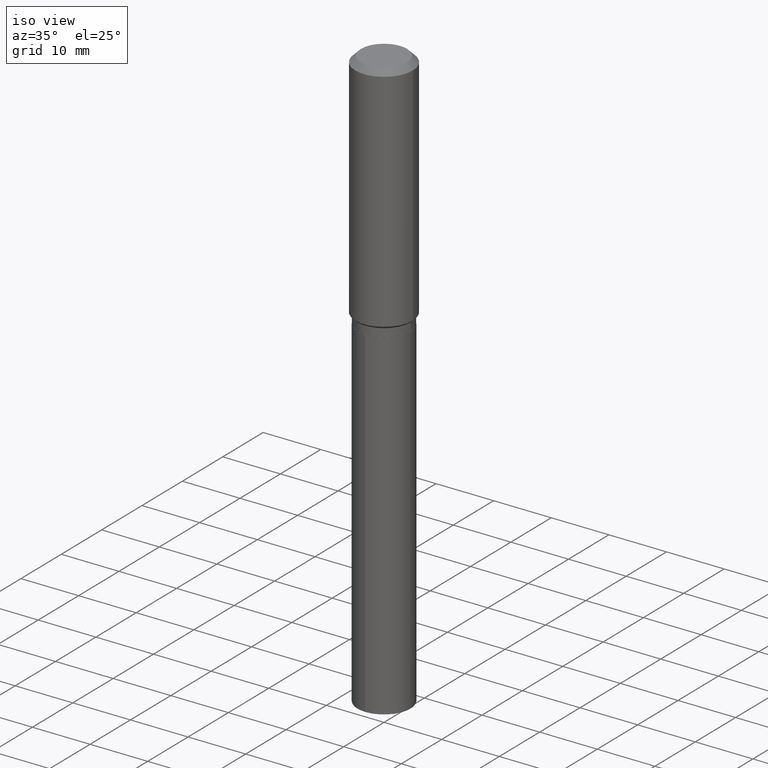
[diagram: clean part render]
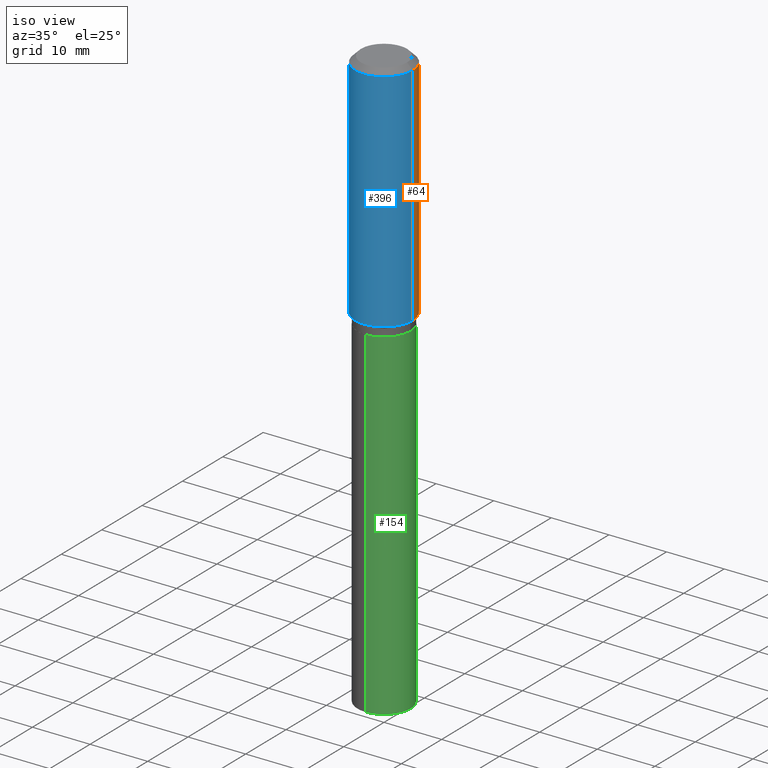
[diagram: same view with three faces highlighted in distinct colors, each labeled with its STEP entity id]
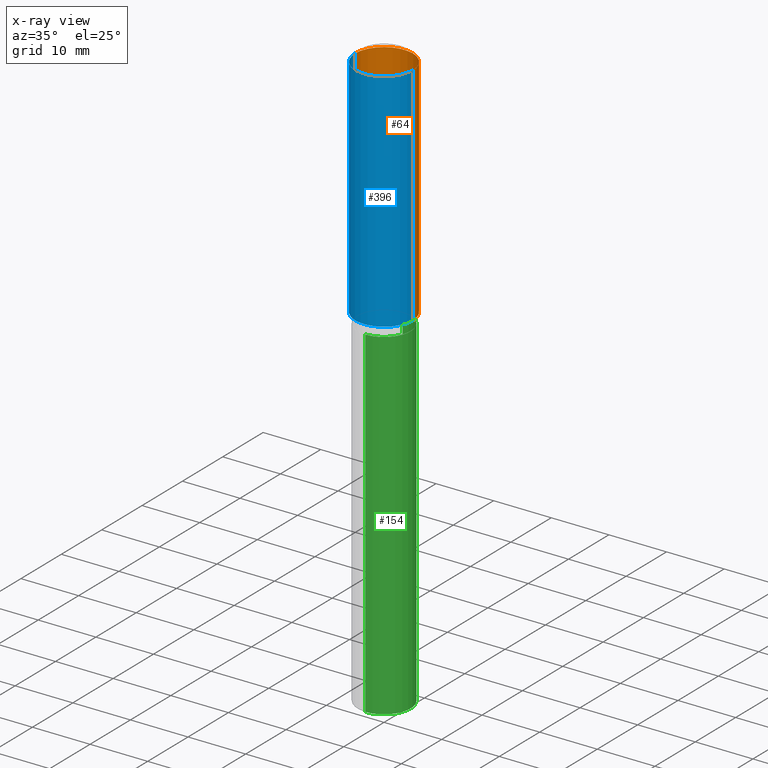
[diagram: x-ray of the same camera — body ghosted, the three highlighted faces saturated]
A machine part, iso view with three faces highlighted in distinct colors.
The next image is the same camera in x-ray (body ghosted, the three faces saturated) — at least one of them is partly hidden behind the body in this view.
Their STEP definitions:

[orange] entity #64 — the highlighted cylindrical surface (edge-blend (fillet) strip) has radius 5 mm, axis along (-0, 0, 1).
#12 = FACE_OUTER_BOUND ( 'NONE', #374, .T. ) ;
#19 = CARTESIAN_POINT ( 'NONE',  ( 0.1968500000000002192, -6.901436588424297877E-15, -1.582949999999999191 ) ) ;
#24 = AXIS2_PLACEMENT_3D ( 'NONE', #82, #167, #342 ) ;
#27 = ORIENTED_EDGE ( 'NONE', *, *, #245, .T. ) ;
#46 = VECTOR ( 'NONE', #203, 39.37007874015748143 ) ;
#62 = ORIENTED_EDGE ( 'NONE', *, *, #274, .T. ) ;
#64 = ADVANCED_FACE ( 'NONE', ( #12 ), #306, .T. ) ;
#80 = LINE ( 'NONE', #121, #97 ) ;
#82 = CARTESIAN_POINT ( 'NONE',  ( 0.000000000000000000, 0.000000000000000000, 0.000000000000000000 ) ) ;
#86 = EDGE_CURVE ( 'NONE', #269, #213, #361, .T. ) ;
#89 = CARTESIAN_POINT ( 'NONE',  ( 0.1968500000000000250, -1.512055823412797189E-15, -0.03937000000000029365 ) ) ;
#97 = VECTOR ( 'NONE', #418, 39.37007874015748143 ) ;
#99 = EDGE_CURVE ( 'NONE', #334, #269, #80, .T. ) ;
#104 = CARTESIAN_POINT ( 'NONE',  ( 3.871054846750760190E-29, -5.526840385321755480E-15, -1.582949999999999191 ) ) ;
#109 = DIRECTION ( 'NONE',  ( 1.000000000000000000, -6.982962677686265922E-15, 0.000000000000000000 ) ) ;
#121 = CARTESIAN_POINT ( 'NONE',  ( 0.1968500000000001082, -1.374596203102542397E-15, 9.598753983154305062E-30 ) ) ;
#147 = AXIS2_PLACEMENT_3D ( 'NONE', #241, #161, #313 ) ;
#161 = DIRECTION ( 'NONE',  ( -2.445468806185136597E-29, 3.491481338843145583E-15, 1.000000000000000000 ) ) ;
#165 = AXIS2_PLACEMENT_3D ( 'NONE', #104, #406, #109 ) ;
#167 = DIRECTION ( 'NONE',  ( -2.445468806185136597E-29, 3.491481338843145583E-15, 1.000000000000000000 ) ) ;
#203 = DIRECTION ( 'NONE',  ( -2.445468806185136877E-29, 3.491481338843145188E-15, 1.000000000000000000 ) ) ;
#207 = ORIENTED_EDGE ( 'NONE', *, *, #86, .F. ) ;
#213 = VERTEX_POINT ( 'NONE', #217 ) ;
#217 = CARTESIAN_POINT ( 'NONE',  ( -0.1968500000000000250, -1.433446627472247151E-15, -0.03937000000000029365 ) ) ;
#241 = CARTESIAN_POINT ( 'NONE',  ( 9.627810689950954155E-31, -1.374596203102556547E-16, -0.03937000000000029365 ) ) ;
#245 = EDGE_CURVE ( 'NONE', #334, #411, #472, .T. ) ;
#246 = CARTESIAN_POINT ( 'NONE',  ( -0.1968500000000001082, 1.398703375343757985E-15, -9.682923725166787881E-30 ) ) ;
#269 = VERTEX_POINT ( 'NONE', #89 ) ;
#272 = CARTESIAN_POINT ( 'NONE',  ( -0.1968500000000002192, -4.128137009977996903E-15, -1.582949999999999191 ) ) ;
#274 = EDGE_CURVE ( 'NONE', #411, #213, #320, .T. ) ;
#306 = CYLINDRICAL_SURFACE ( 'NONE', #24, 0.1968500000000001082 ) ;
#313 = DIRECTION ( 'NONE',  ( 1.000000000000000000, -6.982962677686265922E-15, 0.000000000000000000 ) ) ;
#320 = LINE ( 'NONE', #246, #46 ) ;
#334 = VERTEX_POINT ( 'NONE', #19 ) ;
#342 = DIRECTION ( 'NONE',  ( 1.000000000000000000, -6.982962677686266711E-15, 4.876176775795935793E-29 ) ) ;
#361 = CIRCLE ( 'NONE', #147, 0.1968500000000000250 ) ;
#374 = EDGE_LOOP ( 'NONE', ( #27, #62, #207, #474 ) ) ;
#406 = DIRECTION ( 'NONE',  ( -2.445468806185136597E-29, 3.491481338843145583E-15, 1.000000000000000000 ) ) ;
#411 = VERTEX_POINT ( 'NONE', #272 ) ;
#418 = DIRECTION ( 'NONE',  ( -2.445468806185136877E-29, 3.491481338843145188E-15, 1.000000000000000000 ) ) ;
#472 = CIRCLE ( 'NONE', #165, 0.1968500000000002192 ) ;
#474 = ORIENTED_EDGE ( 'NONE', *, *, #99, .F. ) ;

[blue] entity #396 — the highlighted cylindrical surface (edge-blend (fillet) strip) has radius 5 mm, axis along (-0, 0, 1).
#19 = CARTESIAN_POINT ( 'NONE',  ( 0.1968500000000002192, -6.901436588424297877E-15, -1.582949999999999191 ) ) ;
#41 = CYLINDRICAL_SURFACE ( 'NONE', #416, 0.1968500000000001082 ) ;
#46 = VECTOR ( 'NONE', #203, 39.37007874015748143 ) ;
#68 = AXIS2_PLACEMENT_3D ( 'NONE', #153, #448, #452 ) ;
#79 = DIRECTION ( 'NONE',  ( 1.000000000000000000, -6.982962677686266711E-15, 4.876176775795935793E-29 ) ) ;
#80 = LINE ( 'NONE', #121, #97 ) ;
#88 = FACE_OUTER_BOUND ( 'NONE', #337, .T. ) ;
#89 = CARTESIAN_POINT ( 'NONE',  ( 0.1968500000000000250, -1.512055823412797189E-15, -0.03937000000000029365 ) ) ;
#97 = VECTOR ( 'NONE', #418, 39.37007874015748143 ) ;
#99 = EDGE_CURVE ( 'NONE', #334, #269, #80, .T. ) ;
#110 = ORIENTED_EDGE ( 'NONE', *, *, #274, .F. ) ;
#121 = CARTESIAN_POINT ( 'NONE',  ( 0.1968500000000001082, -1.374596203102542397E-15, 9.598753983154305062E-30 ) ) ;
#133 = AXIS2_PLACEMENT_3D ( 'NONE', #365, #328, #412 ) ;
#153 = CARTESIAN_POINT ( 'NONE',  ( 3.871054846750760190E-29, -5.526840385321755480E-15, -1.582949999999999191 ) ) ;
#203 = DIRECTION ( 'NONE',  ( -2.445468806185136877E-29, 3.491481338843145188E-15, 1.000000000000000000 ) ) ;
#213 = VERTEX_POINT ( 'NONE', #217 ) ;
#214 = EDGE_CURVE ( 'NONE', #213, #269, #290, .T. ) ;
#217 = CARTESIAN_POINT ( 'NONE',  ( -0.1968500000000000250, -1.433446627472247151E-15, -0.03937000000000029365 ) ) ;
#246 = CARTESIAN_POINT ( 'NONE',  ( -0.1968500000000001082, 1.398703375343757985E-15, -9.682923725166787881E-30 ) ) ;
#269 = VERTEX_POINT ( 'NONE', #89 ) ;
#272 = CARTESIAN_POINT ( 'NONE',  ( -0.1968500000000002192, -4.128137009977996903E-15, -1.582949999999999191 ) ) ;
#274 = EDGE_CURVE ( 'NONE', #411, #213, #320, .T. ) ;
#290 = CIRCLE ( 'NONE', #133, 0.1968500000000000250 ) ;
#296 = ORIENTED_EDGE ( 'NONE', *, *, #401, .T. ) ;
#303 = DIRECTION ( 'NONE',  ( -2.445468806185136597E-29, 3.491481338843145583E-15, 1.000000000000000000 ) ) ;
#317 = CIRCLE ( 'NONE', #68, 0.1968500000000002192 ) ;
#320 = LINE ( 'NONE', #246, #46 ) ;
#328 = DIRECTION ( 'NONE',  ( -2.445468806185136597E-29, 3.491481338843145583E-15, 1.000000000000000000 ) ) ;
#334 = VERTEX_POINT ( 'NONE', #19 ) ;
#337 = EDGE_LOOP ( 'NONE', ( #110, #296, #440, #468 ) ) ;
#365 = CARTESIAN_POINT ( 'NONE',  ( 9.627810689950954155E-31, -1.374596203102556547E-16, -0.03937000000000029365 ) ) ;
#396 = ADVANCED_FACE ( 'NONE', ( #88 ), #41, .T. ) ;
#401 = EDGE_CURVE ( 'NONE', #411, #334, #317, .T. ) ;
#408 = CARTESIAN_POINT ( 'NONE',  ( 0.000000000000000000, 0.000000000000000000, 0.000000000000000000 ) ) ;
#411 = VERTEX_POINT ( 'NONE', #272 ) ;
#412 = DIRECTION ( 'NONE',  ( 1.000000000000000000, -6.982962677686265922E-15, 0.000000000000000000 ) ) ;
#416 = AXIS2_PLACEMENT_3D ( 'NONE', #408, #303, #79 ) ;
#418 = DIRECTION ( 'NONE',  ( -2.445468806185136877E-29, 3.491481338843145188E-15, 1.000000000000000000 ) ) ;
#440 = ORIENTED_EDGE ( 'NONE', *, *, #99, .T. ) ;
#448 = DIRECTION ( 'NONE',  ( -2.445468806185136597E-29, 3.491481338843145583E-15, 1.000000000000000000 ) ) ;
#452 = DIRECTION ( 'NONE',  ( 1.000000000000000000, -6.982962677686265922E-15, 0.000000000000000000 ) ) ;
#468 = ORIENTED_EDGE ( 'NONE', *, *, #214, .F. ) ;

[green] entity #154 — the highlighted cylindrical surface (edge-blend (fillet) strip) has radius 4.5999 mm, axis along (-0, 0, 1).
#10 = CARTESIAN_POINT ( 'NONE',  ( -1.264614540928942510E-15, -0.1811000000000057841, -1.653399999999999093 ) ) ;
#21 = VERTEX_POINT ( 'NONE', #487 ) ;
#23 = ORIENTED_EDGE ( 'NONE', *, *, #144, .T. ) ;
#32 = DIRECTION ( 'NONE',  ( -6.982962677686266711E-15, -1.000000000000000000, 3.016949744521549444E-15 ) ) ;
#55 = VERTEX_POINT ( 'NONE', #10 ) ;
#66 = ORIENTED_EDGE ( 'NONE', *, *, #325, .F. ) ;
#69 = CARTESIAN_POINT ( 'NONE',  ( 1.286792894461639136E-15, 0.1810999999999861609, -3.983662812866135106 ) ) ;
#72 = DIRECTION ( 'NONE',  ( -2.445490024045987495E-29, 3.491450953658761522E-15, 1.000000000000000000 ) ) ;
#92 = AXIS2_PLACEMENT_3D ( 'NONE', #143, #72, #32 ) ;
#93 = LINE ( 'NONE', #388, #377 ) ;
#143 = CARTESIAN_POINT ( 'NONE',  ( 4.043338124146503856E-29, -5.772815245643255193E-15, -1.653399999999999537 ) ) ;
#144 = EDGE_CURVE ( 'NONE', #249, #21, #464, .T. ) ;
#154 = ADVANCED_FACE ( 'NONE', ( #204 ), #178, .T. ) ;
#160 = DIRECTION ( 'NONE',  ( -2.445490024045987495E-29, 3.491450953658761522E-15, 1.000000000000000000 ) ) ;
#164 = CARTESIAN_POINT ( 'NONE',  ( 4.043338124146503856E-29, -5.772815245643255193E-15, -1.653399999999999537 ) ) ;
#178 = CYLINDRICAL_SURFACE ( 'NONE', #92, 0.1811000000000000110 ) ;
#190 = ORIENTED_EDGE ( 'NONE', *, *, #349, .F. ) ;
#204 = FACE_OUTER_BOUND ( 'NONE', #271, .T. ) ;
#233 = CARTESIAN_POINT ( 'NONE',  ( 1.286792894461581746E-15, 0.1810999999999942378, -1.653400000000000203 ) ) ;
#249 = VERTEX_POINT ( 'NONE', #69 ) ;
#263 = VERTEX_POINT ( 'NONE', #486 ) ;
#268 = DIRECTION ( 'NONE',  ( -2.445490024045987495E-29, 3.491450953658761522E-15, 1.000000000000000000 ) ) ;
#271 = EDGE_LOOP ( 'NONE', ( #355, #23, #190, #66 ) ) ;
#275 = DIRECTION ( 'NONE',  ( -2.445490024045987775E-29, 3.491450953658761522E-15, 1.000000000000000000 ) ) ;
#277 = CIRCLE ( 'NONE', #405, 0.1811000000000000110 ) ;
#282 = CARTESIAN_POINT ( 'NONE',  ( 9.741972586415979008E-29, -1.390881356590026921E-14, -3.983662812866134662 ) ) ;
#325 = EDGE_CURVE ( 'NONE', #263, #55, #93, .T. ) ;
#348 = DIRECTION ( 'NONE',  ( -6.982962677686266711E-15, -1.000000000000000000, 3.016949744521549444E-15 ) ) ;
#349 = EDGE_CURVE ( 'NONE', #55, #21, #277, .T. ) ;
#355 = ORIENTED_EDGE ( 'NONE', *, *, #488, .T. ) ;
#357 = DIRECTION ( 'NONE',  ( -2.445490024045987775E-29, 3.491450953658761522E-15, 1.000000000000000000 ) ) ;
#377 = VECTOR ( 'NONE', #357, 39.37007874015748143 ) ;
#379 = CIRCLE ( 'NONE', #473, 0.1811000000000000110 ) ;
#383 = VECTOR ( 'NONE', #275, 39.37007874015748143 ) ;
#388 = CARTESIAN_POINT ( 'NONE',  ( -1.264614540928942510E-15, -0.1811000000000057841, -1.653399999999999093 ) ) ;
#405 = AXIS2_PLACEMENT_3D ( 'NONE', #164, #268, #420 ) ;
#420 = DIRECTION ( 'NONE',  ( -6.982962677686266711E-15, -1.000000000000000000, 3.016949744521549444E-15 ) ) ;
#464 = LINE ( 'NONE', #233, #383 ) ;
#473 = AXIS2_PLACEMENT_3D ( 'NONE', #282, #160, #348 ) ;
#486 = CARTESIAN_POINT ( 'NONE',  ( -1.264614540928885318E-15, -0.1811000000000139165, -3.983662812866133773 ) ) ;
#487 = CARTESIAN_POINT ( 'NONE',  ( 1.286792894461639333E-15, 0.1810999999999942378, -1.653400000000000203 ) ) ;
#488 = EDGE_CURVE ( 'NONE', #263, #249, #379, .T. ) ;